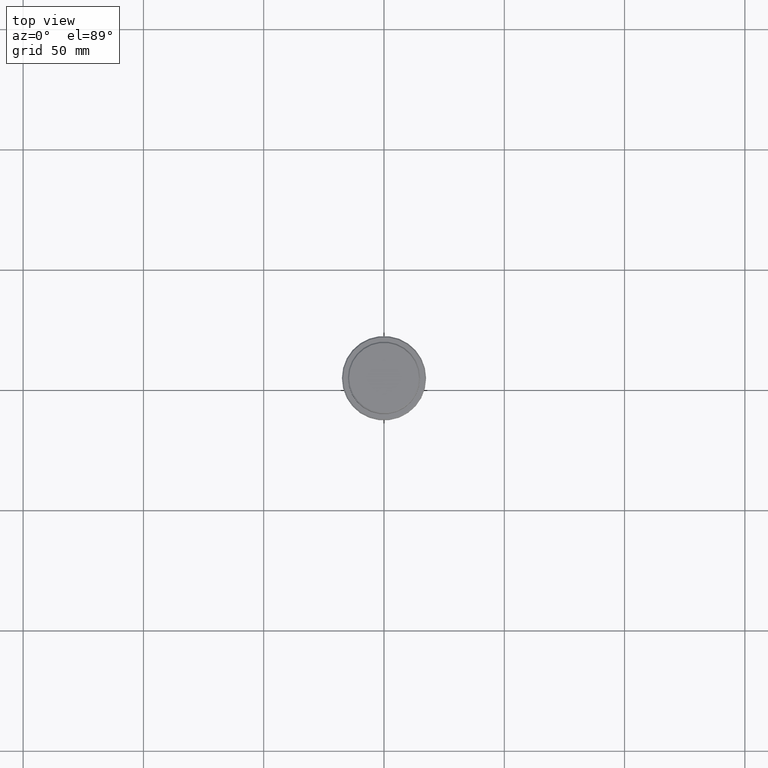
[diagram: clean part render]
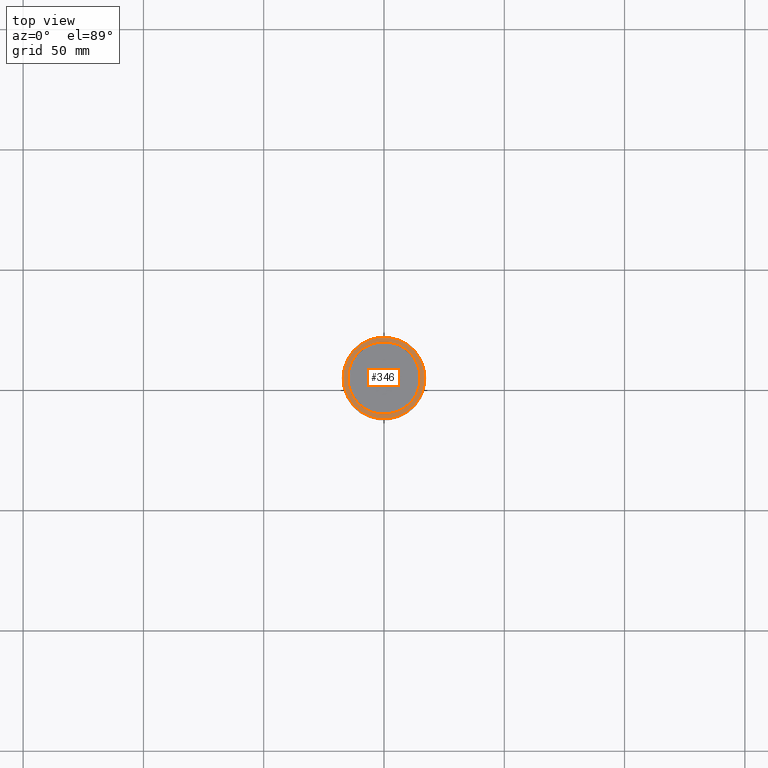
[diagram: same view with one face highlighted and labeled with its STEP entity id]
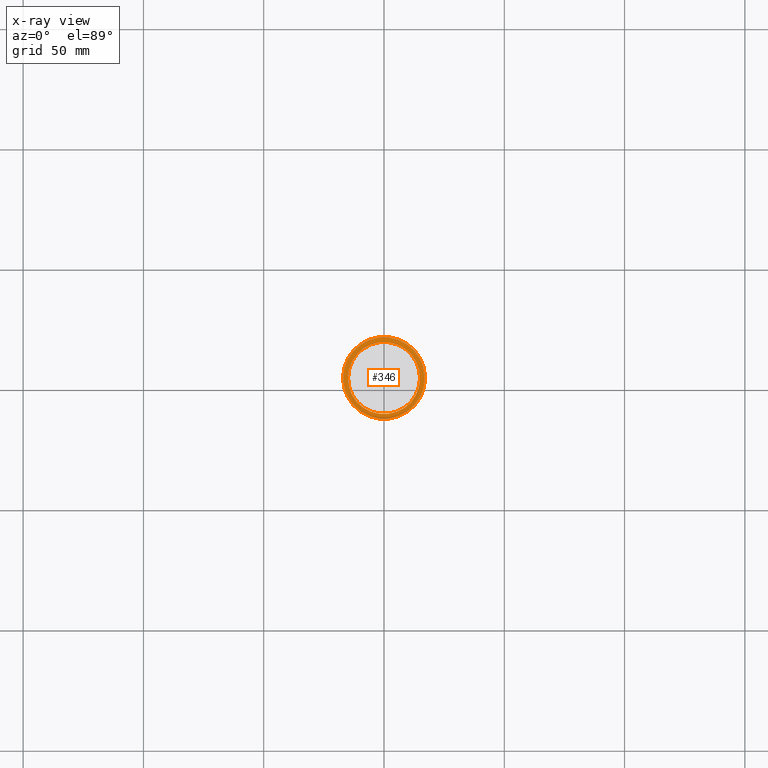
[diagram: x-ray of the same camera — body ghosted, the highlighted face saturated]
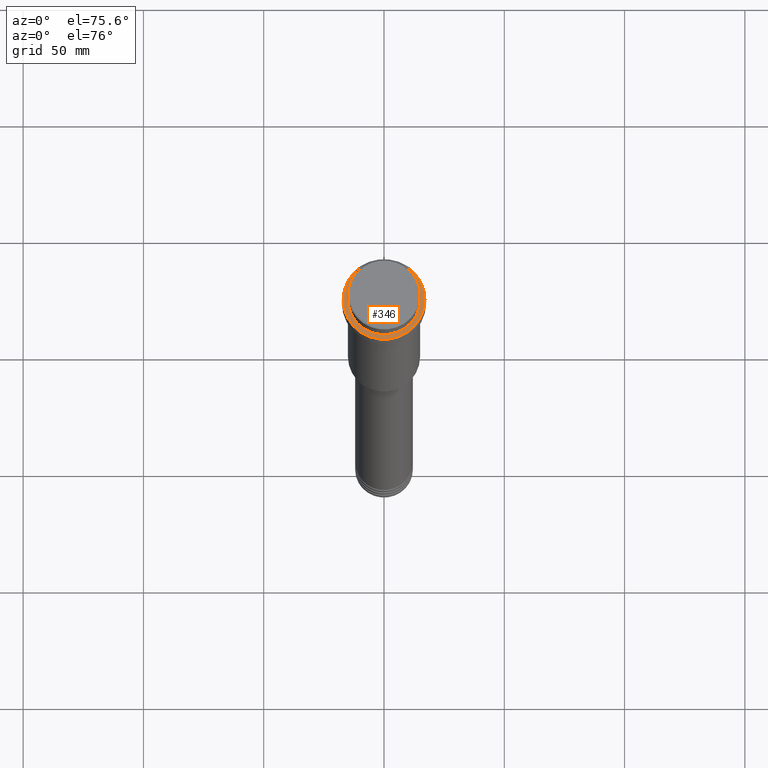
[diagram: same view with one face highlighted and labeled with its STEP entity id]
A machine part, top view. The second image highlights one B-rep face of the part: STEP entity #346.
The next image is the same camera in x-ray: the body ghosted, the highlighted face saturated — about 0% of this face is hidden behind the body in this view.
A second angle (auxiliary view) of the same face is appended — the face is thin or edge-on in the first view.
In plain terms, the highlighted planar face has unit normal (0, -0, 1).
Its self-contained STEP definition (entity closure, byte-faithful):
#71 = EDGE_LOOP ( 'NONE', ( #918, #709 ) ) ;
#147 = ORIENTED_EDGE ( 'NONE', *, *, #453, .T. ) ;
#158 = CARTESIAN_POINT ( 'NONE',  ( 0.000000000000000000, 14.49999999999999467, -9.000000000000001776 ) ) ;
#174 = DIRECTION ( 'NONE',  ( 1.000000000000000000, 0.000000000000000000, 0.000000000000000000 ) ) ;
#180 = EDGE_CURVE ( 'NONE', #1407, #1376, #960, .T. ) ;
#186 = AXIS2_PLACEMENT_3D ( 'NONE', #371, #807, #174 ) ;
#201 = EDGE_LOOP ( 'NONE', ( #998, #147 ) ) ;
#265 = DIRECTION ( 'NONE',  ( 0.000000000000000000, -0.000000000000000000, 1.000000000000000000 ) ) ;
#323 = AXIS2_PLACEMENT_3D ( 'NONE', #1196, #1289, #508 ) ;
#327 = EDGE_CURVE ( 'NONE', #1376, #1407, #1051, .T. ) ;
#346 = ADVANCED_FACE ( 'NONE', ( #1238, #1246 ), #608, .T. ) ;
#350 = CARTESIAN_POINT ( 'NONE',  ( 0.000000000000000000, 0.000000000000000000, -9.000000000000001776 ) ) ;
#371 = CARTESIAN_POINT ( 'NONE',  ( 0.000000000000000000, 0.000000000000000000, -9.000000000000001776 ) ) ;
#390 = CIRCLE ( 'NONE', #323, 16.99999999999996092 ) ;
#453 = EDGE_CURVE ( 'NONE', #619, #546, #390, .T. ) ;
#508 = DIRECTION ( 'NONE',  ( 1.000000000000000000, 0.000000000000000000, 0.000000000000000000 ) ) ;
#546 = VERTEX_POINT ( 'NONE', #1411 ) ;
#559 = DIRECTION ( 'NONE',  ( 0.000000000000000000, 0.000000000000000000, -1.000000000000000000 ) ) ;
#565 = DIRECTION ( 'NONE',  ( 1.000000000000000000, 0.000000000000000000, 0.000000000000000000 ) ) ;
#592 = EDGE_CURVE ( 'NONE', #546, #619, #1075, .T. ) ;
#608 = PLANE ( 'NONE',  #1283 ) ;
#619 = VERTEX_POINT ( 'NONE', #1006 ) ;
#649 = AXIS2_PLACEMENT_3D ( 'NONE', #350, #673, #1331 ) ;
#673 = DIRECTION ( 'NONE',  ( -0.000000000000000000, -0.000000000000000000, 1.000000000000000000 ) ) ;
#709 = ORIENTED_EDGE ( 'NONE', *, *, #180, .T. ) ;
#807 = DIRECTION ( 'NONE',  ( 0.000000000000000000, 0.000000000000000000, -1.000000000000000000 ) ) ;
#918 = ORIENTED_EDGE ( 'NONE', *, *, #327, .T. ) ;
#933 = DIRECTION ( 'NONE',  ( 1.000000000000000000, 0.000000000000000000, 0.000000000000000000 ) ) ;
#960 = CIRCLE ( 'NONE', #1348, 14.99999999999999467 ) ;
#998 = ORIENTED_EDGE ( 'NONE', *, *, #592, .T. ) ;
#1006 = CARTESIAN_POINT ( 'NONE',  ( 16.99999999999996092, 2.112515728529182095E-15, -9.000000000000001776 ) ) ;
#1019 = CARTESIAN_POINT ( 'NONE',  ( 14.99999999999999467, 0.000000000000000000, -9.000000000000001776 ) ) ;
#1051 = CIRCLE ( 'NONE', #186, 14.99999999999999467 ) ;
#1075 = CIRCLE ( 'NONE', #649, 16.99999999999996092 ) ;
#1196 = CARTESIAN_POINT ( 'NONE',  ( 0.000000000000000000, 0.000000000000000000, -9.000000000000001776 ) ) ;
#1220 = CARTESIAN_POINT ( 'NONE',  ( -14.99999999999999467, 1.836970198721029194E-15, -9.000000000000001776 ) ) ;
#1222 = CARTESIAN_POINT ( 'NONE',  ( 0.000000000000000000, 0.000000000000000000, -9.000000000000001776 ) ) ;
#1238 = FACE_OUTER_BOUND ( 'NONE', #201, .T. ) ;
#1246 = FACE_BOUND ( 'NONE', #71, .T. ) ;
#1283 = AXIS2_PLACEMENT_3D ( 'NONE', #158, #265, #933 ) ;
#1289 = DIRECTION ( 'NONE',  ( -0.000000000000000000, -0.000000000000000000, 1.000000000000000000 ) ) ;
#1331 = DIRECTION ( 'NONE',  ( 1.000000000000000000, 0.000000000000000000, 0.000000000000000000 ) ) ;
#1348 = AXIS2_PLACEMENT_3D ( 'NONE', #1222, #559, #565 ) ;
#1376 = VERTEX_POINT ( 'NONE', #1019 ) ;
#1407 = VERTEX_POINT ( 'NONE', #1220 ) ;
#1411 = CARTESIAN_POINT ( 'NONE',  ( -16.99999999999996092, 0.000000000000000000, -9.000000000000001776 ) ) ;